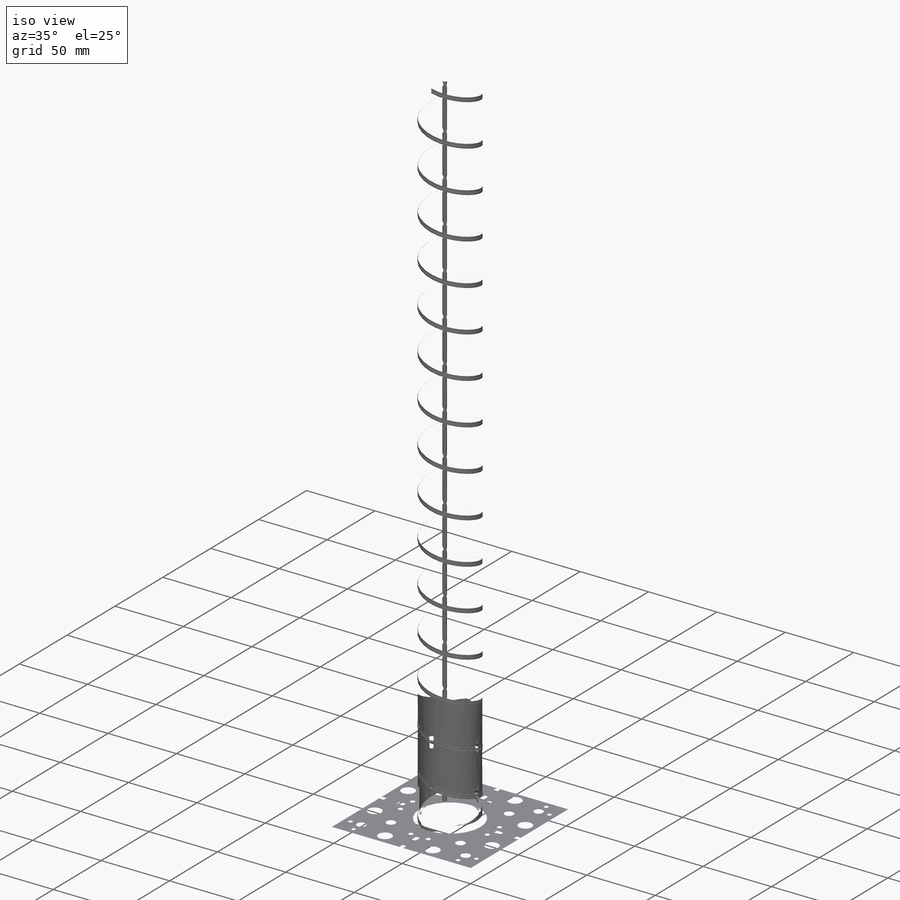
[diagram: iso view]
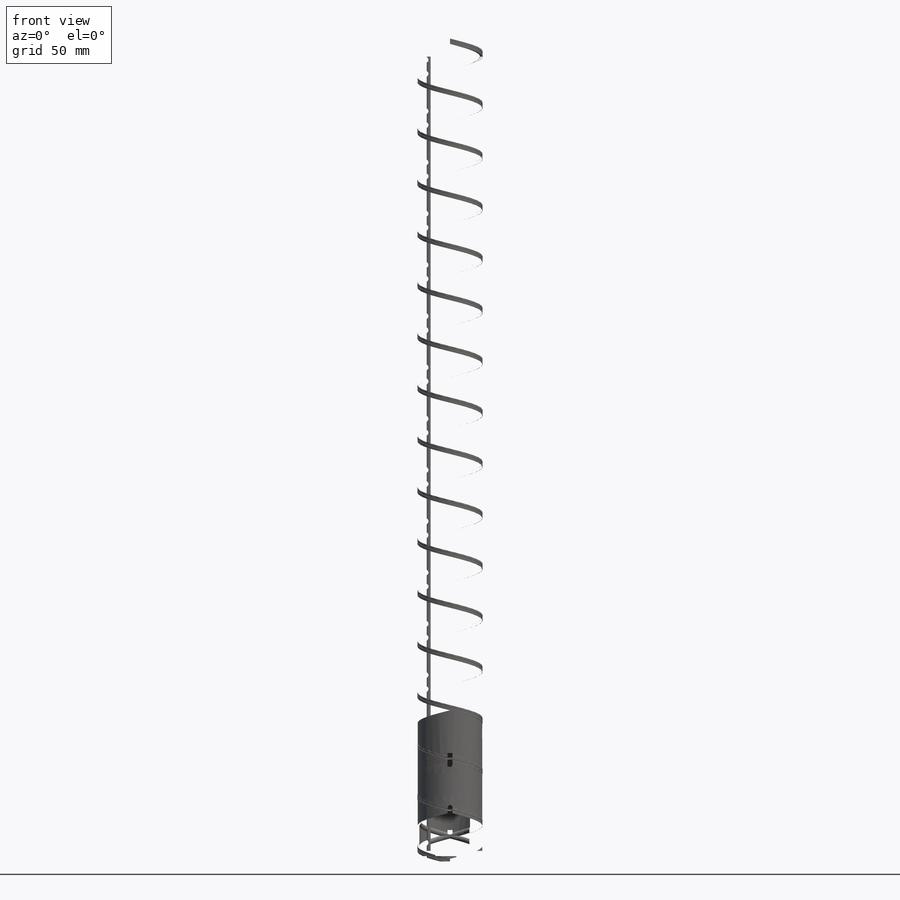
[diagram: front view]
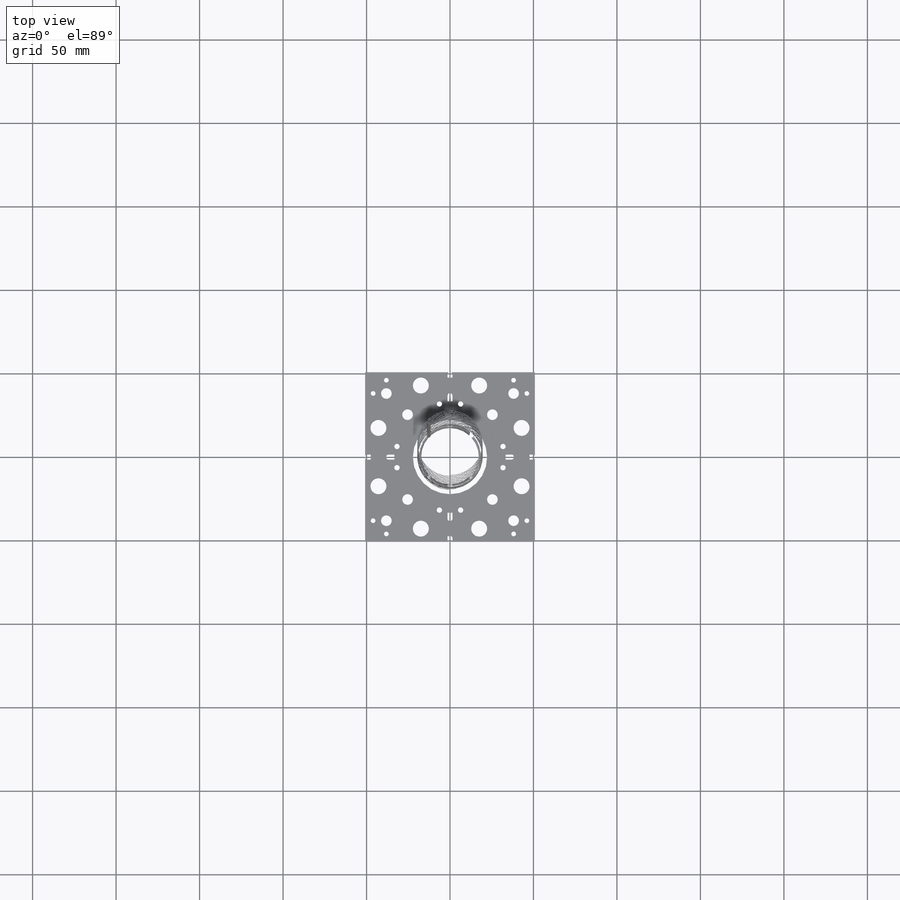
[diagram: top view]
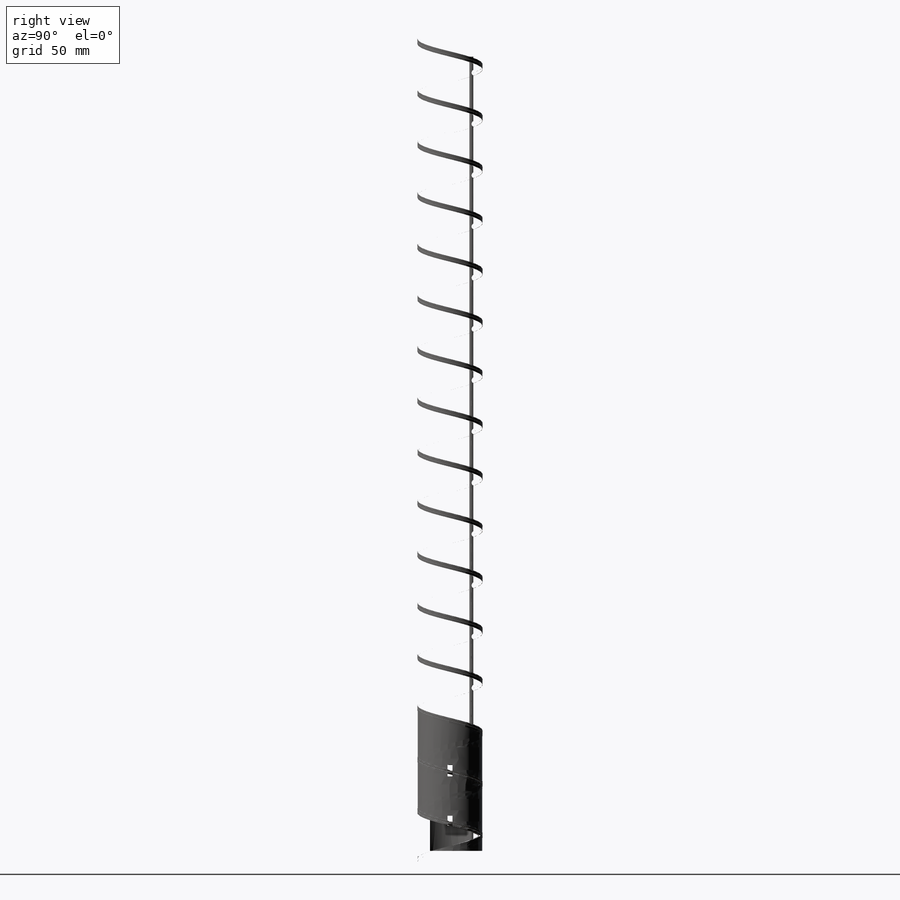
[diagram: right view]
SOLIDWORKS PART (.sldprt)
format: sldprt  version: not decoded by parser v0  size: 5,317,120 bytes
history: native  units: mm
features: sketch x12, extrude x5, fillet x4, helix x2, sweep x2, cut_extrude x2, material x1 (+15 scaffold rows collapsed)
feature tree (43):
  scaffold x15  (default folders/planes/origin — collapsed)
  material  "A-Glass Fiber"
  sketch  "Sketch1"  dims[D1=19.9mm]
  sketch  "Sketch9"  dims[D1=19.9mm]
  helix  "Helix2"  Pitch=491.2mm
  sketch  "Sketch10"  dims[D1=19.9mm]
  helix  "Helix3"  Pitch=491.2mm
  sketch  "Sketch11"
  sweep  "Sweep6"
  sketch  "Sketch12"  dims[D1=1.5mm]
  sweep  "Sweep7"
  sketch  "Sketch13"  dims[D1=15.875mm]
  extrude  "Extrude2"  Depth=482mm
  sketch  "Sketch14"  dims[D1=38.1mm D2=46.0375mm D3=38.1mm D4=46.0375mm]
  extrude  "Extrude3"  Depth=3.175mm
  fillet  "Fillet1"  Radius=3mm
  sketch  "Sketch15"  dims[D1=~20.798106mm]
  extrude  "Extrude4"  Depth=3.175mm
  fillet  "Fillet3"  Radius=2mm
  fillet  "Fillet4"  Radius=3mm
  sketch  "Sketch18"  dims[D1=3.175mm]
  cut_extrude  "Cut-Extrude2"  Depth=1.5mm
  sketch  "Sketch19"  dims[D1=~0.767004mm]
  extrude  "Extrude5"  Depth=1.5mm
  sketch  "Sketch20"  dims[D1=~0.879813mm]
  extrude  "Extrude6"  Depth=1.5mm
  fillet  "Fillet9"  Radius=1mm
  sketch  "Sketch21"
  cut_extrude  "Cut-Extrude3"  Depth=10mm faceID=282000mm
decode coverage: 23 of 27 modeling features carry decoded parameters
note: ~ marks probable driven/reference dimensions
note: suppression state not decoded; provenance and decode notes live in map.json
